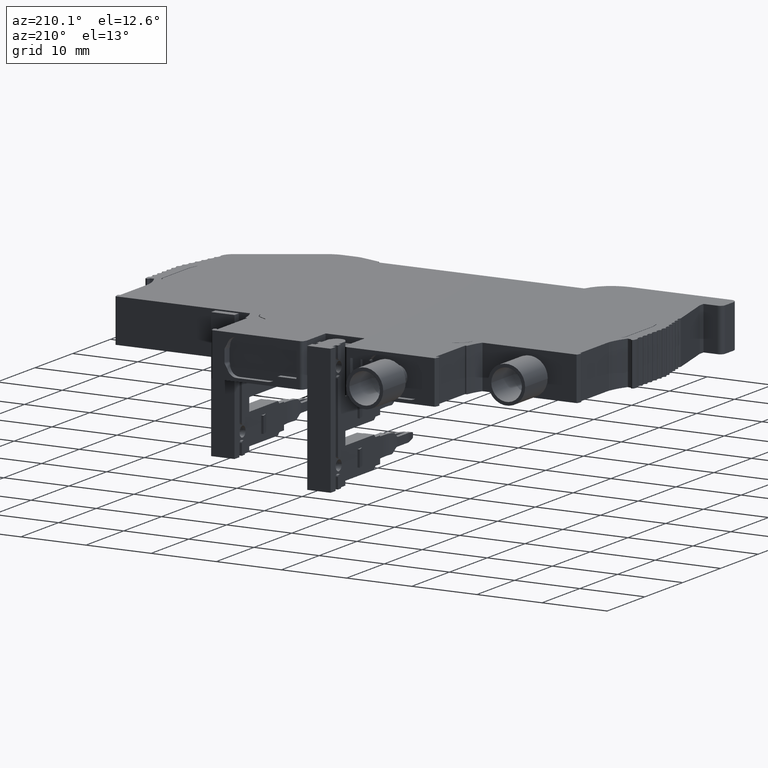
[diagram: clean part render]
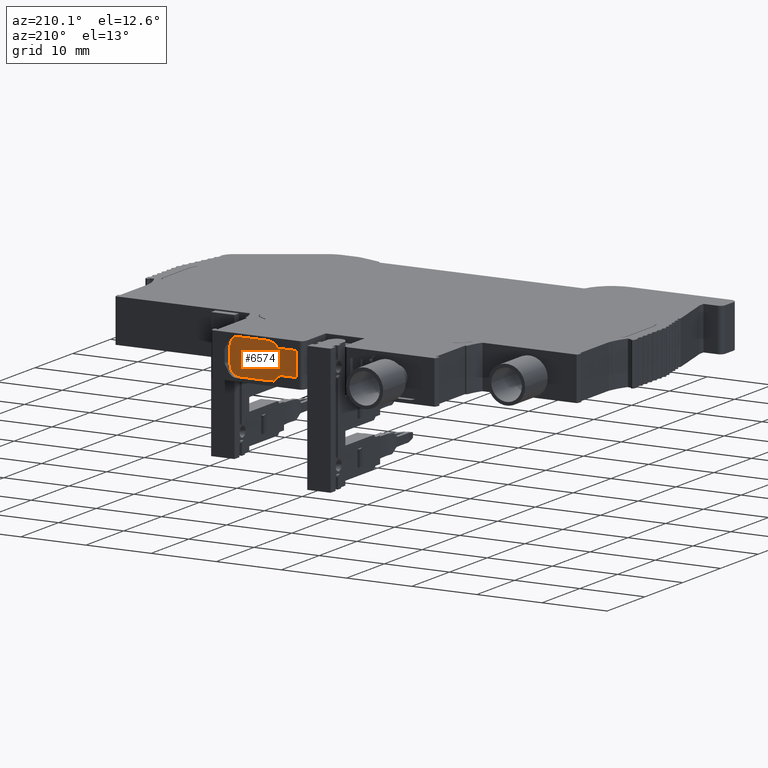
[diagram: same view with one face highlighted and labeled with its STEP entity id]
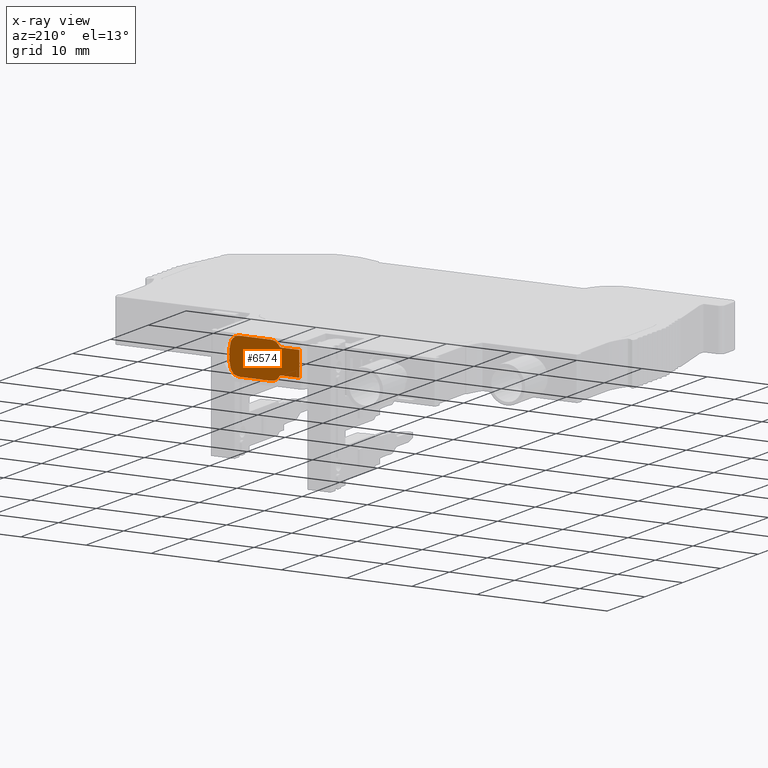
[diagram: x-ray of the same camera — body ghosted, the highlighted face saturated]
A machine part, auxiliary view. The second image highlights one B-rep face of the part: STEP entity #6574.
The next image is the same camera in x-ray: the body ghosted, the highlighted face saturated — about 0% of this face is hidden behind the body in this view.
In plain terms, the highlighted planar face has unit normal (0, 1, 0).
Its self-contained STEP definition (entity closure, byte-faithful):
#6101 = EDGE_CURVE ( 'NONE', #8323, #6709, #53008, .T. ) ;
#6115 = EDGE_CURVE ( 'NONE', #6700, #6711, #53001, .T. ) ;
#6132 = EDGE_CURVE ( 'NONE', #6709, #6736, #52976, .T. ) ;
#6142 = EDGE_CURVE ( 'NONE', #6711, #8293, #52993, .T. ) ;
#6574 = ADVANCED_FACE ( 'NONE', ( #47242 ), #47208, .T. ) ;
#6689 = VERTEX_POINT ( 'NONE', #47758 ) ;
#6699 = VERTEX_POINT ( 'NONE', #47741 ) ;
#6700 = VERTEX_POINT ( 'NONE', #47766 ) ;
#6707 = VERTEX_POINT ( 'NONE', #47761 ) ;
#6709 = VERTEX_POINT ( 'NONE', #47729 ) ;
#6711 = VERTEX_POINT ( 'NONE', #47731 ) ;
#6718 = VERTEX_POINT ( 'NONE', #47737 ) ;
#6736 = VERTEX_POINT ( 'NONE', #47821 ) ;
#6737 = VERTEX_POINT ( 'NONE', #47849 ) ;
#6746 = VERTEX_POINT ( 'NONE', #47819 ) ;
#8286 = VERTEX_POINT ( 'NONE', #48792 ) ;
#8293 = VERTEX_POINT ( 'NONE', #48785 ) ;
#8311 = VERTEX_POINT ( 'NONE', #48763 ) ;
#8320 = VERTEX_POINT ( 'NONE', #48859 ) ;
#8323 = VERTEX_POINT ( 'NONE', #48842 ) ;
#8329 = VERTEX_POINT ( 'NONE', #48879 ) ;
#8345 = VERTEX_POINT ( 'NONE', #48841 ) ;
#8396 = VERTEX_POINT ( 'NONE', #48940 ) ;
#13875 = EDGE_CURVE ( 'NONE', #8345, #8311, #50997, .T. ) ;
#13882 = EDGE_CURVE ( 'NONE', #6700, #8396, #45893, .T. ) ;
#13883 = EDGE_CURVE ( 'NONE', #8323, #6737, #45906, .T. ) ;
#13889 = EDGE_CURVE ( 'NONE', #8329, #8293, #45892, .T. ) ;
#13890 = EDGE_CURVE ( 'NONE', #8320, #6736, #45873, .T. ) ;
#13893 = EDGE_CURVE ( 'NONE', #8396, #8320, #51062, .T. ) ;
#13908 = EDGE_CURVE ( 'NONE', #6689, #6746, #46470, .T. ) ;
#13919 = EDGE_CURVE ( 'NONE', #8345, #6707, #46490, .T. ) ;
#13928 = EDGE_CURVE ( 'NONE', #8286, #6707, #46499, .T. ) ;
#13946 = EDGE_CURVE ( 'NONE', #8286, #6737, #51246, .T. ) ;
#13961 = EDGE_CURVE ( 'NONE', #8311, #6699, #51302, .T. ) ;
#13987 = EDGE_CURVE ( 'NONE', #6689, #6718, #46529, .T. ) ;
#13993 = EDGE_CURVE ( 'NONE', #8329, #6718, #51453, .T. ) ;
#14064 = EDGE_CURVE ( 'NONE', #6746, #6699, #51615, .T. ) ;
#15572 = ORIENTED_EDGE ( 'NONE', *, *, #13919, .T. ) ;
#15573 = ORIENTED_EDGE ( 'NONE', *, *, #6132, .T. ) ;
#15574 = ORIENTED_EDGE ( 'NONE', *, *, #13908, .T. ) ;
#15582 = ORIENTED_EDGE ( 'NONE', *, *, #13987, .F. ) ;
#15590 = ORIENTED_EDGE ( 'NONE', *, *, #13882, .F. ) ;
#15591 = ORIENTED_EDGE ( 'NONE', *, *, #13961, .F. ) ;
#15593 = ORIENTED_EDGE ( 'NONE', *, *, #13883, .F. ) ;
#15594 = ORIENTED_EDGE ( 'NONE', *, *, #6142, .T. ) ;
#15598 = ORIENTED_EDGE ( 'NONE', *, *, #13893, .F. ) ;
#15610 = ORIENTED_EDGE ( 'NONE', *, *, #13993, .T. ) ;
#15617 = ORIENTED_EDGE ( 'NONE', *, *, #6101, .T. ) ;
#15660 = ORIENTED_EDGE ( 'NONE', *, *, #14064, .T. ) ;
#15661 = ORIENTED_EDGE ( 'NONE', *, *, #13890, .F. ) ;
#15662 = ORIENTED_EDGE ( 'NONE', *, *, #13889, .F. ) ;
#15666 = ORIENTED_EDGE ( 'NONE', *, *, #13946, .T. ) ;
#15667 = ORIENTED_EDGE ( 'NONE', *, *, #13875, .F. ) ;
#15673 = ORIENTED_EDGE ( 'NONE', *, *, #13928, .F. ) ;
#15677 = ORIENTED_EDGE ( 'NONE', *, *, #6115, .T. ) ;
#16221 = EDGE_LOOP ( 'NONE', ( #15673, #15666, #15593, #15617, #15573, #15661, #15598, #15590, #15677, #15594, #15662, #15610, #15582, #15574, #15660, #15591, #15667, #15572 ) ) ;
#39473 = CARTESIAN_POINT ( 'NONE',  ( 1941.133025896530600, 459.8674757026274700, 1.723578463776694700 ) ) ;
#39489 = CARTESIAN_POINT ( 'NONE',  ( 1941.139488575343400, 459.8674757026280400, 1.635606396554016000 ) ) ;
#39491 = CARTESIAN_POINT ( 'NONE',  ( 1941.135679283690500, 459.8674757026280400, 1.664761640990083600 ) ) ;
#39494 = CARTESIAN_POINT ( 'NONE',  ( 1941.133488152651600, 459.8674757026280400, 1.694179053914527800 ) ) ;
#39518 = CARTESIAN_POINT ( 'NONE',  ( 1941.148465245065600, 459.8674757026280400, -0.7669014970434976400 ) ) ;
#39529 = CARTESIAN_POINT ( 'NONE',  ( 1941.191586530827200, 459.8674757026280400, -0.6366768834819867000 ) ) ;
#39531 = CARTESIAN_POINT ( 'NONE',  ( 1941.139488575343400, 459.8674757026280400, -0.8356063965541431500 ) ) ;
#39558 = CARTESIAN_POINT ( 'NONE',  ( 1941.166637972556400, 459.8674757026280400, -0.7008219758506630800 ) ) ;
#39563 = CARTESIAN_POINT ( 'NONE',  ( 1941.191586530827200, 459.8674757026280400, 1.436676883481993600 ) ) ;
#39579 = CARTESIAN_POINT ( 'NONE',  ( 1941.139488575343400, 459.8674757026280400, 1.635606396554016000 ) ) ;
#39581 = CARTESIAN_POINT ( 'NONE',  ( 1941.166570149985100, 459.8674757026280400, 1.500996354062820200 ) ) ;
#39599 = CARTESIAN_POINT ( 'NONE',  ( 1941.148383590448700, 459.8674757026280400, 1.567526458451455900 ) ) ;
#39631 = CARTESIAN_POINT ( 'NONE',  ( 1941.133025896530600, 459.8674757026275900, -0.9235784637766646400 ) ) ;
#39638 = CARTESIAN_POINT ( 'NONE',  ( 1941.139488575343400, 459.8674757026280400, -0.8356063965541431500 ) ) ;
#39647 = CARTESIAN_POINT ( 'NONE',  ( 1941.135679283693200, 459.8674757026280400, -0.8647616409902050300 ) ) ;
#39655 = CARTESIAN_POINT ( 'NONE',  ( 1941.133488152651600, 459.8674757026280400, -0.8941790539144993700 ) ) ;
#45873 =( BOUNDED_CURVE ( )  B_SPLINE_CURVE ( 3, ( #51013, #51085, #51086, #51078 ),
 .UNSPECIFIED., .F., .F. ) 
 B_SPLINE_CURVE_WITH_KNOTS ( ( 4, 4 ),
 ( 0.0000000000000000000, 0.3483027451022472400 ),
 .UNSPECIFIED. ) 
 CURVE ( )  GEOMETRIC_REPRESENTATION_ITEM ( )  RATIONAL_B_SPLINE_CURVE ( ( 1.000000000000000000, 0.9899159581648763200, 0.9899159581648763200, 1.000000000000000000 ) ) 
 REPRESENTATION_ITEM ( '' )  );
#45892 =( BOUNDED_CURVE ( )  B_SPLINE_CURVE ( 3, ( #51010, #51012, #51022, #51024 ),
 .UNSPECIFIED., .F., .T. ) 
 B_SPLINE_CURVE_WITH_KNOTS ( ( 4, 4 ),
 ( 4.712388980383949800, 6.267465683932817600 ),
 .UNSPECIFIED. ) 
 CURVE ( )  GEOMETRIC_REPRESENTATION_ITEM ( )  RATIONAL_B_SPLINE_CURVE ( ( 1.000000000000000000, 0.8084284058890786100, 0.8084284058890786100, 1.000000000000000000 ) ) 
 REPRESENTATION_ITEM ( '' )  );
#45893 =( BOUNDED_CURVE ( )  B_SPLINE_CURVE ( 3, ( #51043, #51038, #51030, #51014 ),
 .UNSPECIFIED., .F., .T. ) 
 B_SPLINE_CURVE_WITH_KNOTS ( ( 4, 4 ),
 ( 5.934882562077339300, 6.283185307179586200 ),
 .UNSPECIFIED. ) 
 CURVE ( )  GEOMETRIC_REPRESENTATION_ITEM ( )  RATIONAL_B_SPLINE_CURVE ( ( 1.000000000000000000, 0.9899159581648764300, 0.9899159581648764300, 1.000000000000000000 ) ) 
 REPRESENTATION_ITEM ( '' )  );
#45906 =( BOUNDED_CURVE ( )  B_SPLINE_CURVE ( 3, ( #51018, #51008, #51042, #51004 ),
 .UNSPECIFIED., .F., .T. ) 
 B_SPLINE_CURVE_WITH_KNOTS ( ( 4, 4 ),
 ( 3.157312276836581800, 4.712388980386169400 ),
 .UNSPECIFIED. ) 
 CURVE ( )  GEOMETRIC_REPRESENTATION_ITEM ( )  RATIONAL_B_SPLINE_CURVE ( ( 1.000000000000000000, 0.8084284058889103000, 0.8084284058889103000, 1.000000000000000000 ) ) 
 REPRESENTATION_ITEM ( '' )  );
#46017 = AXIS2_PLACEMENT_3D ( 'NONE', #47244, #47222, #47202 ) ;
#46470 = CIRCLE ( 'NONE', #46485, 0.2500000000000000000 ) ;
#46485 = AXIS2_PLACEMENT_3D ( 'NONE', #51112, #51120, #51105 ) ;
#46490 = CIRCLE ( 'NONE', #46491, 0.2500000000000002200 ) ;
#46491 = AXIS2_PLACEMENT_3D ( 'NONE', #51171, #51162, #51185 ) ;
#46499 = CIRCLE ( 'NONE', #46500, 1.499999999999999800 ) ;
#46500 = AXIS2_PLACEMENT_3D ( 'NONE', #51211, #51209, #51230 ) ;
#46506 = VECTOR ( 'NONE', #50977, 1000.000000000000000 ) ;
#46511 = VECTOR ( 'NONE', #51058, 1000.000000000000000 ) ;
#46529 = CIRCLE ( 'NONE', #46532, 1.500000000000000000 ) ;
#46532 = AXIS2_PLACEMENT_3D ( 'NONE', #51388, #51407, #51393 ) ;
#46541 = VECTOR ( 'NONE', #51250, 1000.000000000000000 ) ;
#46548 = VECTOR ( 'NONE', #51323, 1000.000000000000000 ) ;
#46585 = VECTOR ( 'NONE', #51449, 1000.000000000000000 ) ;
#46660 = VECTOR ( 'NONE', #51685, 1000.000000000000000 ) ;
#47202 = DIRECTION ( 'NONE',  ( 0.0000000000000000000, -0.0000000000000000000, 1.000000000000000000 ) ) ;
#47208 = PLANE ( 'NONE',  #46017 ) ;
#47222 = DIRECTION ( 'NONE',  ( 0.0000000000000000000, 1.000000000000000000, 0.0000000000000000000 ) ) ;
#47242 = FACE_OUTER_BOUND ( 'NONE', #16221, .T. ) ;
#47244 = CARTESIAN_POINT ( 'NONE',  ( 1909.625990423340200, 459.8674757026280400, -37.41790825024326500 ) ) ;
#47729 = CARTESIAN_POINT ( 'NONE',  ( 1941.139488575343400, 459.8674757026280400, 1.635606396554016000 ) ) ;
#47731 = CARTESIAN_POINT ( 'NONE',  ( 1941.139488575343400, 459.8674757026280400, -0.8356063965541431500 ) ) ;
#47737 = CARTESIAN_POINT ( 'NONE',  ( 1934.863558687204900, 459.8674757026280400, -2.399999999999999900 ) ) ;
#47741 = CARTESIAN_POINT ( 'NONE',  ( 1930.504781859994900, 459.8674757026280400, -1.500000000000000000 ) ) ;
#47758 = CARTESIAN_POINT ( 'NONE',  ( 1933.552382240850000, 459.8674757026280400, -1.628571428571429900 ) ) ;
#47761 = CARTESIAN_POINT ( 'NONE',  ( 1933.552382240850000, 459.8674757026280400, 2.428571428571435000 ) ) ;
#47766 = CARTESIAN_POINT ( 'NONE',  ( 1941.191586530827200, 459.8674757026280400, -0.6366768834819867000 ) ) ;
#47819 = CARTESIAN_POINT ( 'NONE',  ( 1933.333852833124900, 459.8674757026280400, -1.500000000000000000 ) ) ;
#47821 = CARTESIAN_POINT ( 'NONE',  ( 1941.191586530827200, 459.8674757026280400, 1.436676883481993600 ) ) ;
#47849 = CARTESIAN_POINT ( 'NONE',  ( 1939.632982758793100, 459.8674757026280400, 3.200000000000000200 ) ) ;
#48763 = CARTESIAN_POINT ( 'NONE',  ( 1930.504781859994900, 459.8674757026280400, 2.299999999999999800 ) ) ;
#48785 = CARTESIAN_POINT ( 'NONE',  ( 1941.133025896530600, 459.8674757026275900, -0.9235784637766646400 ) ) ;
#48792 = CARTESIAN_POINT ( 'NONE',  ( 1934.863558687204900, 459.8674757026280400, 3.200000000000000200 ) ) ;
#48841 = CARTESIAN_POINT ( 'NONE',  ( 1933.333852833124900, 459.8674757026280400, 2.299999999999999800 ) ) ;
#48842 = CARTESIAN_POINT ( 'NONE',  ( 1941.133025896530600, 459.8674757026274700, 1.723578463776694700 ) ) ;
#48859 = CARTESIAN_POINT ( 'NONE',  ( 1941.223745868019700, 459.8674757026280400, 1.266025403784496000 ) ) ;
#48879 = CARTESIAN_POINT ( 'NONE',  ( 1939.632982758794200, 459.8674757026280400, -2.399999999999999900 ) ) ;
#48940 = CARTESIAN_POINT ( 'NONE',  ( 1941.223745868014900, 459.8674757026280400, -0.4660254037844889800 ) ) ;
#50975 = CARTESIAN_POINT ( 'NONE',  ( 1931.188785978645000, 459.8674757026280400, 2.299999999999999800 ) ) ;
#50977 = DIRECTION ( 'NONE',  ( -1.000000000000000000, 0.0000000000000000000, 0.0000000000000000000 ) ) ;
#50997 = LINE ( 'NONE', #50975, #46506 ) ;
#51004 = CARTESIAN_POINT ( 'NONE',  ( 1939.632982758793100, 459.8674757026280400, 3.200000000000000200 ) ) ;
#51008 = CARTESIAN_POINT ( 'NONE',  ( 1941.119383414502400, 459.8674757026280400, 2.591237976686058300 ) ) ;
#51010 = CARTESIAN_POINT ( 'NONE',  ( 1939.632982758794200, 459.8674757026280400, -2.399999999999999900 ) ) ;
#51012 = CARTESIAN_POINT ( 'NONE',  ( 1940.500881670125900, 459.8674757026281000, -2.400000000000642500 ) ) ;
#51013 = CARTESIAN_POINT ( 'NONE',  ( 1941.223745868019700, 459.8674757026280400, 1.266025403784496000 ) ) ;
#51014 = CARTESIAN_POINT ( 'NONE',  ( 1941.223745868014900, 459.8674757026280400, -0.4660254037844889800 ) ) ;
#51018 = CARTESIAN_POINT ( 'NONE',  ( 1941.133025896530600, 459.8674757026274700, 1.723578463776694700 ) ) ;
#51022 = CARTESIAN_POINT ( 'NONE',  ( 1941.119383414502200, 459.8674757026281000, -1.791237976685531500 ) ) ;
#51024 = CARTESIAN_POINT ( 'NONE',  ( 1941.133025896530600, 459.8674757026275900, -0.9235784637766646400 ) ) ;
#51030 = CARTESIAN_POINT ( 'NONE',  ( 1941.223745868018300, 459.8674757026281000, -0.5243712352666430900 ) ) ;
#51038 = CARTESIAN_POINT ( 'NONE',  ( 1941.212916889077600, 459.8674757026281000, -0.5818345240404405600 ) ) ;
#51042 = CARTESIAN_POINT ( 'NONE',  ( 1940.500881670125900, 459.8674757026280400, 3.200000000001283200 ) ) ;
#51043 = CARTESIAN_POINT ( 'NONE',  ( 1941.191586530827200, 459.8674757026280400, -0.6366768834819867000 ) ) ;
#51056 = CARTESIAN_POINT ( 'NONE',  ( 1941.223745868019700, 459.8674757026280400, -0.5999999999999999800 ) ) ;
#51058 = DIRECTION ( 'NONE',  ( 0.0000000000000000000, 0.0000000000000000000, 1.000000000000000000 ) ) ;
#51062 = LINE ( 'NONE', #51056, #46511 ) ;
#51078 = CARTESIAN_POINT ( 'NONE',  ( 1941.191586530827200, 459.8674757026280400, 1.436676883481993600 ) ) ;
#51085 = CARTESIAN_POINT ( 'NONE',  ( 1941.223745868018300, 459.8674757026281000, 1.324371235266650100 ) ) ;
#51086 = CARTESIAN_POINT ( 'NONE',  ( 1941.212916889077900, 459.8674757026281000, 1.381834524040447700 ) ) ;
#51105 = DIRECTION ( 'NONE',  ( 8.881784197001252300E-013, 0.0000000000000000000, 1.000000000000000000 ) ) ;
#51112 = CARTESIAN_POINT ( 'NONE',  ( 1933.333852833124900, 459.8674757026280400, -1.750000000000000000 ) ) ;
#51120 = DIRECTION ( 'NONE',  ( -0.0000000000000000000, -1.000000000000000000, -0.0000000000000000000 ) ) ;
#51162 = DIRECTION ( 'NONE',  ( -0.0000000000000000000, -1.000000000000000000, -0.0000000000000000000 ) ) ;
#51171 = CARTESIAN_POINT ( 'NONE',  ( 1933.333852833124900, 459.8674757026280400, 2.550000000000000300 ) ) ;
#51185 = DIRECTION ( 'NONE',  ( 8.881784197001244200E-013, 0.0000000000000000000, 1.000000000000000000 ) ) ;
#51209 = DIRECTION ( 'NONE',  ( -0.0000000000000000000, -1.000000000000000000, -0.0000000000000000000 ) ) ;
#51211 = CARTESIAN_POINT ( 'NONE',  ( 1934.863558687204900, 459.8674757026280400, 1.700000000000000000 ) ) ;
#51230 = DIRECTION ( 'NONE',  ( 0.0000000000000000000, 0.0000000000000000000, 1.000000000000000000 ) ) ;
#51246 = LINE ( 'NONE', #51249, #46541 ) ;
#51249 = CARTESIAN_POINT ( 'NONE',  ( 1940.119410976665000, 459.8674757026280400, 3.200000000000000200 ) ) ;
#51250 = DIRECTION ( 'NONE',  ( 1.000000000000000000, 0.0000000000000000000, 0.0000000000000000000 ) ) ;
#51302 = LINE ( 'NONE', #51322, #46548 ) ;
#51322 = CARTESIAN_POINT ( 'NONE',  ( 1930.504781859994900, 459.8674757026280400, -1.500000000000000000 ) ) ;
#51323 = DIRECTION ( 'NONE',  ( 0.0000000000000000000, 0.0000000000000000000, -1.000000000000000000 ) ) ;
#51388 = CARTESIAN_POINT ( 'NONE',  ( 1934.863558687204900, 459.8674757026280400, -0.9000000000000000200 ) ) ;
#51393 = DIRECTION ( 'NONE',  ( 1.480297366166875300E-013, 0.0000000000000000000, 1.000000000000000000 ) ) ;
#51407 = DIRECTION ( 'NONE',  ( -0.0000000000000000000, -1.000000000000000000, -0.0000000000000000000 ) ) ;
#51428 = CARTESIAN_POINT ( 'NONE',  ( 1940.616078055774800, 459.8674757026280400, -2.399999999999999900 ) ) ;
#51449 = DIRECTION ( 'NONE',  ( -1.000000000000000000, 0.0000000000000000000, 0.0000000000000000000 ) ) ;
#51453 = LINE ( 'NONE', #51428, #46585 ) ;
#51615 = LINE ( 'NONE', #51674, #46660 ) ;
#51674 = CARTESIAN_POINT ( 'NONE',  ( 1931.188785978645000, 459.8674757026280400, -1.500000000000000000 ) ) ;
#51685 = DIRECTION ( 'NONE',  ( -1.000000000000000000, 0.0000000000000000000, 0.0000000000000000000 ) ) ;
#52976 = B_SPLINE_CURVE_WITH_KNOTS ( 'NONE', 3,
 ( #39579, #39599, #39581, #39563 ),
 .UNSPECIFIED., .F., .F.,
 ( 4, 4 ),
 ( 0.0004617731339756400000, 0.0006667525483676303300 ),
 .UNSPECIFIED. ) ;
#52993 = B_SPLINE_CURVE_WITH_KNOTS ( 'NONE', 3,
 ( #39638, #39647, #39655, #39631 ),
 .UNSPECIFIED., .F., .F.,
 ( 4, 4 ),
 ( 4.258746133523061400E-016, 8.820913120967540300E-005 ),
 .UNSPECIFIED. ) ;
#53001 = B_SPLINE_CURVE_WITH_KNOTS ( 'NONE', 3,
 ( #39529, #39558, #39518, #39531 ),
 .UNSPECIFIED., .F., .F.,
 ( 4, 4 ),
 ( 0.0006580198323709097500, 0.0008568405649635923900 ),
 .UNSPECIFIED. ) ;
#53008 = B_SPLINE_CURVE_WITH_KNOTS ( 'NONE', 3,
 ( #39473, #39494, #39491, #39489 ),
 .UNSPECIFIED., .F., .F.,
 ( 4, 4 ),
 ( 1.853985714950212600E-016, 8.820913121044037600E-005 ),
 .UNSPECIFIED. ) ;